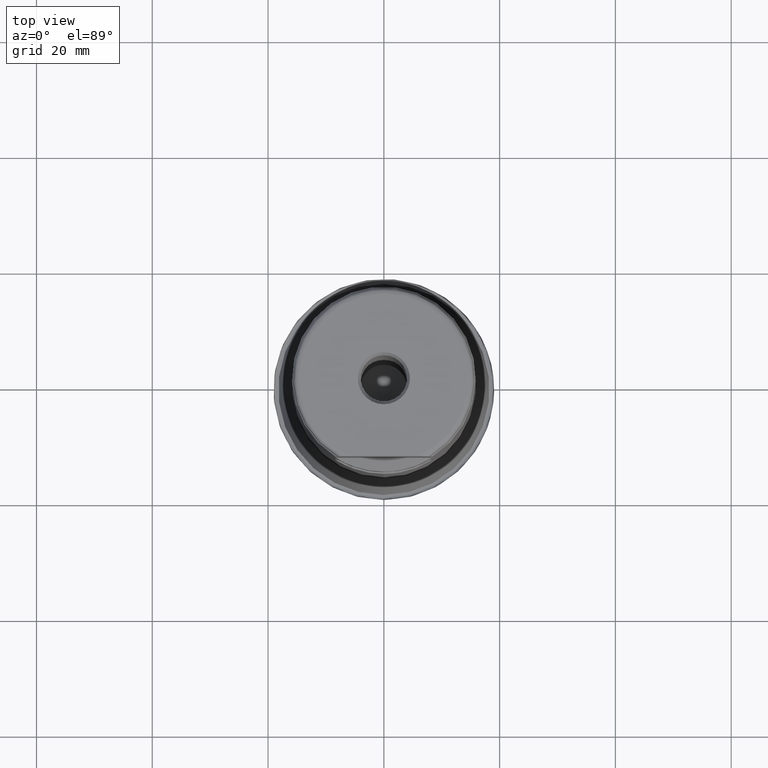
[diagram: clean part render]
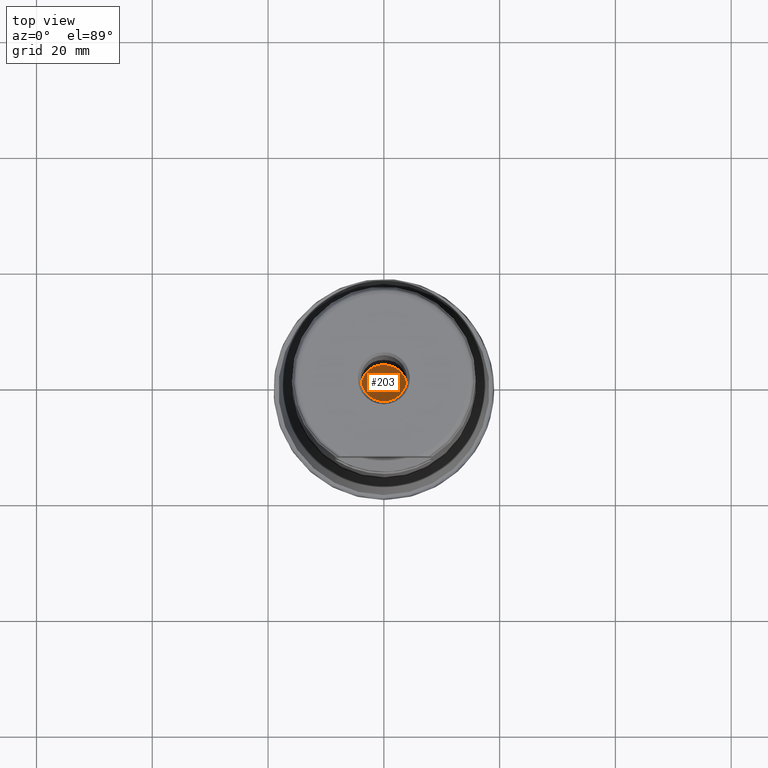
[diagram: same view with one face highlighted and labeled with its STEP entity id]
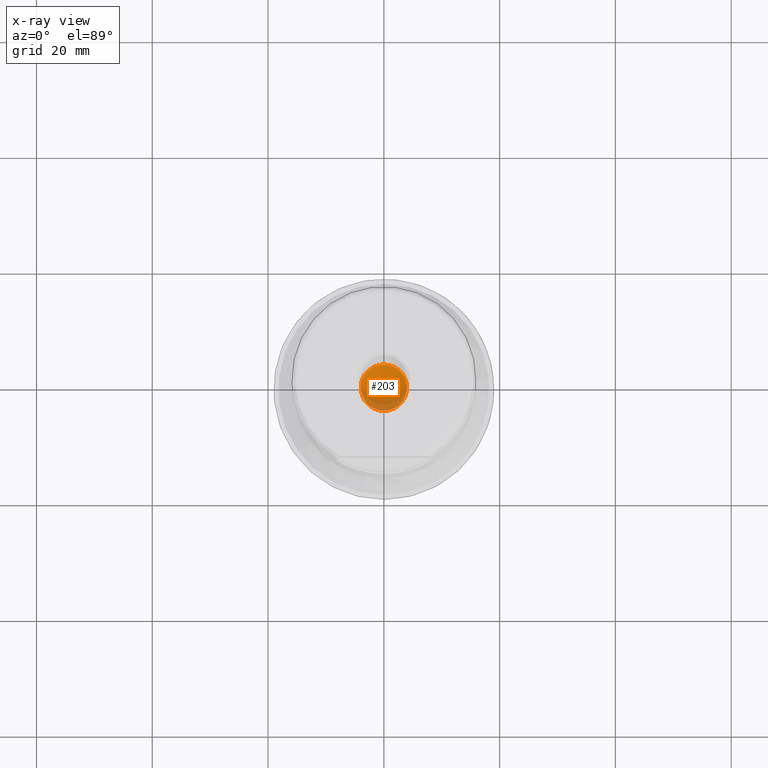
[diagram: x-ray of the same camera — body ghosted, the highlighted face saturated]
A machine part, top view. The second image highlights one B-rep face of the part: STEP entity #203.
The next image is the same camera in x-ray: the body ghosted, the highlighted face saturated — about 26% of this face is hidden behind the body in this view.
In plain terms, the highlighted conical surface has half-angle 59 deg.
Its self-contained STEP definition (entity closure, byte-faithful):
#152=VERTEX_LOOP('',#670);
#172=CONICAL_SURFACE('',#848,4.,59.);
#203=ADVANCED_FACE('',(#315,#316),#172,.F.);
#263=CIRCLE('',#847,4.);
#315=FACE_BOUND('',#399,.T.);
#316=FACE_BOUND('',#152,.T.);
#399=EDGE_LOOP('',(#552));
#552=ORIENTED_EDGE('',*,*,#733,.T.);
#669=VERTEX_POINT('',#1460);
#670=VERTEX_POINT('',#1461);
#733=EDGE_CURVE('',#669,#669,#263,.T.);
#847=AXIS2_PLACEMENT_3D('',#1459,#967,#968);
#848=AXIS2_PLACEMENT_3D('',#1462,#969,#970);
#967=DIRECTION('',(0.,1.17145536458252E-15,1.));
#968=DIRECTION('',(0.,1.,-8.67361737988404E-16));
#969=DIRECTION('',(0.,1.17145536458252E-15,1.));
#970=DIRECTION('',(0.,-1.,1.25611204905995E-15));
#1459=CARTESIAN_POINT('',(0.,2.26090885364427E-14,19.3));
#1460=CARTESIAN_POINT('',(0.,4.00000000000002,19.3));
#1461=CARTESIAN_POINT('',(0.,1.97935629543379E-14,16.8965575238898));
#1462=CARTESIAN_POINT('',(0.,2.26090885364427E-14,19.3));